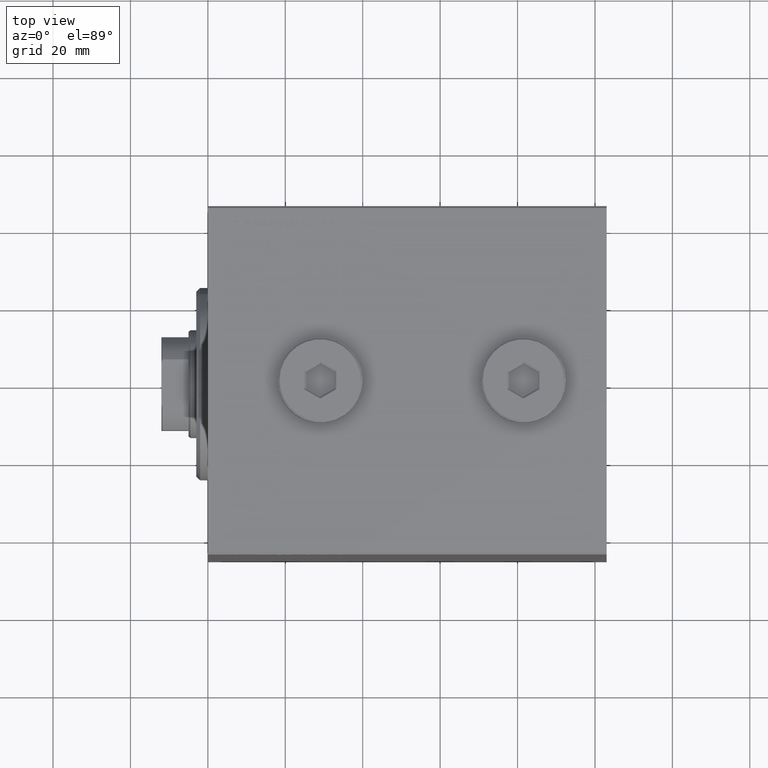
[diagram: clean part render]
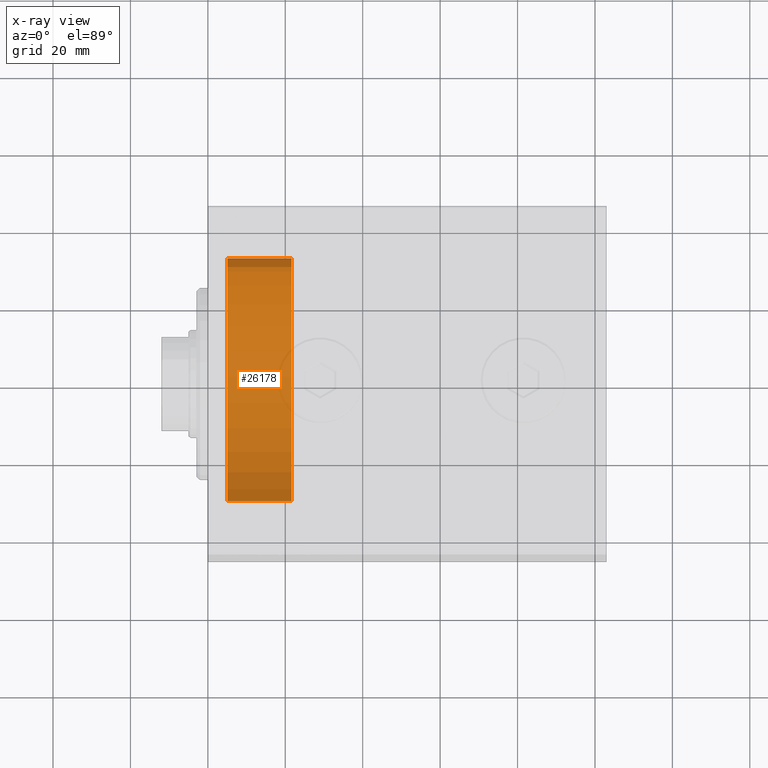
[diagram: x-ray — body ghosted, one internal face saturated and labeled with its STEP entity id]
A machine part, top view, then the same camera in x-ray: the body is ghosted and one INTERNAL B-rep face — a face not visible from any outside direction — is saturated and labeled: STEP entity #26178.
In plain terms, the highlighted cylindrical surface (partial cylindrical patch) has radius 32.5 mm, axis along (-1, 0, 0).
Its self-contained STEP definition (entity closure, byte-faithful):
#529 = DIRECTION ( 'NONE',  ( 1.000000000000000000, -0.000000000000000000, -0.000000000000000000 ) ) ;
#1218 = EDGE_CURVE ( 'NONE', #41624, #4140, #31782, .T. ) ;
#2473 = VERTEX_POINT ( 'NONE', #11096 ) ;
#2676 = DIRECTION ( 'NONE',  ( 0.000000000000000000, 0.000000000000000000, 1.000000000000000000 ) ) ;
#4140 = VERTEX_POINT ( 'NONE', #7319 ) ;
#4737 = VERTEX_POINT ( 'NONE', #26383 ) ;
#5694 = DIRECTION ( 'NONE',  ( 0.000000000000000000, 0.000000000000000000, -1.000000000000000000 ) ) ;
#6198 = AXIS2_PLACEMENT_3D ( 'NONE', #20027, #33931, #2676 ) ;
#7319 = CARTESIAN_POINT ( 'NONE',  ( -5.000000000000000000, 0.000000000000000000, -32.50000000000000000 ) ) ;
#8869 = CARTESIAN_POINT ( 'NONE',  ( -5.000000000000000000, 0.000000000000000000, 0.000000000000000000 ) ) ;
#9680 = AXIS2_PLACEMENT_3D ( 'NONE', #12319, #15069, #5694 ) ;
#11096 = CARTESIAN_POINT ( 'NONE',  ( -21.60000000000000142, 3.980102097228897837E-15, 32.50000000000000000 ) ) ;
#12319 = CARTESIAN_POINT ( 'NONE',  ( -21.60000000000000142, 0.000000000000000000, 0.000000000000000000 ) ) ;
#13369 = EDGE_LOOP ( 'NONE', ( #26842, #32192, #34393, #29720 ) ) ;
#14888 = CIRCLE ( 'NONE', #6198, 32.50000000000000000 ) ;
#15069 = DIRECTION ( 'NONE',  ( 1.000000000000000000, -0.000000000000000000, -0.000000000000000000 ) ) ;
#15239 = EDGE_CURVE ( 'NONE', #2473, #4737, #32244, .T. ) ;
#19616 = FACE_OUTER_BOUND ( 'NONE', #13369, .T. ) ;
#20027 = CARTESIAN_POINT ( 'NONE',  ( -21.60000000000000142, 0.000000000000000000, 0.000000000000000000 ) ) ;
#21978 = CARTESIAN_POINT ( 'NONE',  ( -21.60000000000000142, 3.980102097228897837E-15, 32.50000000000000000 ) ) ;
#25430 = VECTOR ( 'NONE', #42526, 1000.000000000000000 ) ;
#26178 = ADVANCED_FACE ( 'NONE', ( #19616 ), #36940, .T. ) ;
#26383 = CARTESIAN_POINT ( 'NONE',  ( -5.000000000000000000, 3.980102097228897837E-15, 32.50000000000000000 ) ) ;
#26651 = DIRECTION ( 'NONE',  ( -1.000000000000000000, 0.000000000000000000, 0.000000000000000000 ) ) ;
#26842 = ORIENTED_EDGE ( 'NONE', *, *, #35743, .F. ) ;
#27906 = CARTESIAN_POINT ( 'NONE',  ( -21.60000000000000142, 0.000000000000000000, -32.50000000000000000 ) ) ;
#29720 = ORIENTED_EDGE ( 'NONE', *, *, #1218, .F. ) ;
#31782 = LINE ( 'NONE', #27906, #35144 ) ;
#32192 = ORIENTED_EDGE ( 'NONE', *, *, #15239, .T. ) ;
#32244 = LINE ( 'NONE', #21978, #25430 ) ;
#33486 = DIRECTION ( 'NONE',  ( 0.000000000000000000, 0.000000000000000000, 1.000000000000000000 ) ) ;
#33931 = DIRECTION ( 'NONE',  ( -1.000000000000000000, 0.000000000000000000, 0.000000000000000000 ) ) ;
#34119 = CARTESIAN_POINT ( 'NONE',  ( -21.60000000000000142, 0.000000000000000000, -32.50000000000000000 ) ) ;
#34393 = ORIENTED_EDGE ( 'NONE', *, *, #40063, .T. ) ;
#35144 = VECTOR ( 'NONE', #529, 1000.000000000000000 ) ;
#35735 = CIRCLE ( 'NONE', #44506, 32.50000000000000000 ) ;
#35743 = EDGE_CURVE ( 'NONE', #2473, #41624, #14888, .T. ) ;
#36940 = CYLINDRICAL_SURFACE ( 'NONE', #9680, 32.50000000000000000 ) ;
#40063 = EDGE_CURVE ( 'NONE', #4737, #4140, #35735, .T. ) ;
#41624 = VERTEX_POINT ( 'NONE', #34119 ) ;
#42526 = DIRECTION ( 'NONE',  ( 1.000000000000000000, -0.000000000000000000, -0.000000000000000000 ) ) ;
#44506 = AXIS2_PLACEMENT_3D ( 'NONE', #8869, #26651, #33486 ) ;